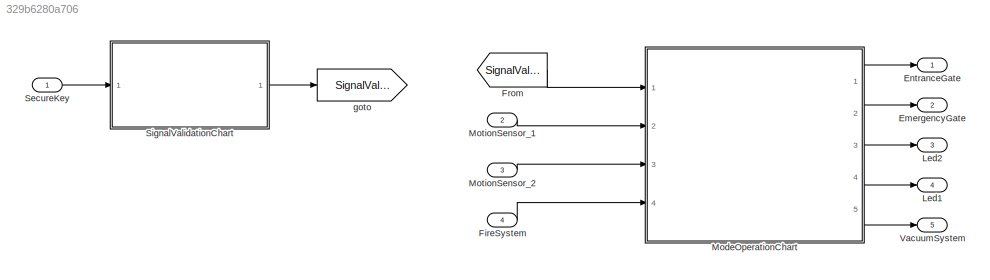
MODEL slx_329b6280a706
KIND model
CONFIG AbsTol = auto
CONFIG FixedStep = auto
CONFIG MaxStep = auto
CONFIG MinStep = auto
CONFIG RelTol = 1e-3
CONFIG SampleTimeConstraint = Unconstrained
CONFIG Solver = VariableStepAuto
CONFIG SolverMode = Auto
CONFIG SolverName = VariableStepAuto
CONFIG StartTime = 0.0
CONFIG StopTime = 10.0
BLOCK [Outport] EmergencyGate
  IconDisplay = Port number
  Port = 2
BLOCK [Outport] EntranceGate
  IconDisplay = Port number
BLOCK [Inport] FireSystem
  IconDisplay = Port number
  Port = 4
BLOCK [From] From
  GotoTag = SignalValidity
BLOCK [Outport] Led1
  IconDisplay = Port number
  Port = 4
BLOCK [Outport] Led2
  IconDisplay = Port number
  Port = 3
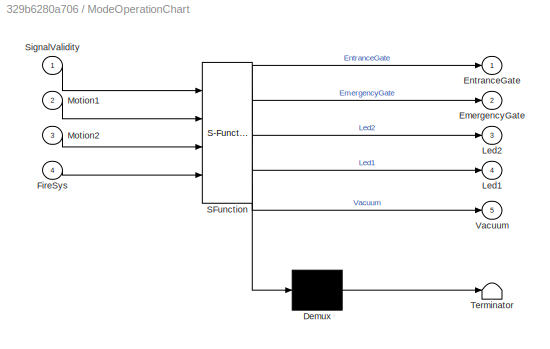
BLOCK [SubSystem] ModeOperationChart
  ErrorFcn = Stateflow.Translate.translate
  PermitHierarchicalResolution = ExplicitOnly
  Ports = [4, 5]
  RequestExecContextInheritance = off
  SFBlockType = Chart
  TreatAsAtomicUnit = on
  Variant = off
BLOCK [Demux] ModeOperationChart/ Demux 
  Outputs = 1
  Ports = [1, 1]
BLOCK [S-Function] ModeOperationChart/ SFunction 
  EnableBusSupport = on
  FunctionName = sf_sfun
  PortCounts = [4 6]
  Ports = [4, 6]
  SFunctionDeploymentMode = off
  Tag = Stateflow S-Function SecureRoom 1
BLOCK [Terminator] ModeOperationChart/ Terminator 
BLOCK [Outport] ModeOperationChart/EmergencyGate
  IconDisplay = Port number
  Port = 2
BLOCK [Outport] ModeOperationChart/EntranceGate
  IconDisplay = Port number
BLOCK [Inport] ModeOperationChart/FireSys
  IconDisplay = Port number
  Port = 4
BLOCK [Outport] ModeOperationChart/Led1
  IconDisplay = Port number
  Port = 4
BLOCK [Outport] ModeOperationChart/Led2
  IconDisplay = Port number
  Port = 3
BLOCK [Inport] ModeOperationChart/Motion1
  IconDisplay = Port number
  Port = 2
BLOCK [Inport] ModeOperationChart/Motion2
  IconDisplay = Port number
  Port = 3
BLOCK [Inport] ModeOperationChart/SignalValidity
  IconDisplay = Port number
BLOCK [Outport] ModeOperationChart/Vacuum
  IconDisplay = Port number
  Port = 5
BLOCK [Inport] MotionSensor_1
  IconDisplay = Port number
  Port = 2
BLOCK [Inport] MotionSensor_2
  IconDisplay = Port number
  Port = 3
BLOCK [Inport] SecureKey
  IconDisplay = Port number
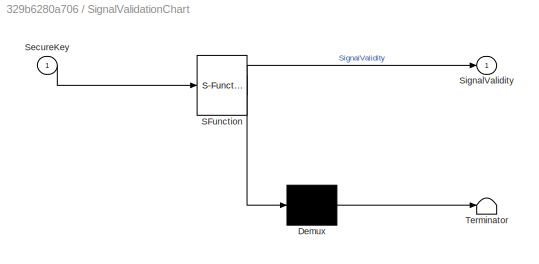
BLOCK [SubSystem] SignalValidationChart
  ErrorFcn = Stateflow.Translate.translate
  PermitHierarchicalResolution = ExplicitOnly
  Ports = [1, 1]
  RequestExecContextInheritance = off
  SFBlockType = Chart
  TreatAsAtomicUnit = on
  Variant = off
BLOCK [Demux] SignalValidationChart/ Demux 
  Outputs = 1
  Ports = [1, 1]
BLOCK [S-Function] SignalValidationChart/ SFunction 
  EnableBusSupport = on
  FunctionName = sf_sfun
  PortCounts = [1 2]
  Ports = [1, 2]
  SFunctionDeploymentMode = off
  Tag = Stateflow S-Function SecureRoom 3
BLOCK [Terminator] SignalValidationChart/ Terminator 
BLOCK [Inport] SignalValidationChart/SecureKey
  IconDisplay = Port number
BLOCK [Outport] SignalValidationChart/SignalValidity
  IconDisplay = Port number
BLOCK [Outport] VacuumSystem
  IconDisplay = Port number
  Port = 5
BLOCK [Goto] goto
  GotoTag = SignalValidity
LINE FireSystem:1 -> ModeOperationChart:4
LINE From:1 -> ModeOperationChart:1
LINE ModeOperationChart:1 -> EntranceGate:1
LINE ModeOperationChart:2 -> EmergencyGate:1
LINE ModeOperationChart:3 -> Led2:1
LINE ModeOperationChart:4 -> Led1:1
LINE ModeOperationChart:5 -> VacuumSystem:1
LINE MotionSensor_1:1 -> ModeOperationChart:2
LINE MotionSensor_2:1 -> ModeOperationChart:3
LINE SecureKey:1 -> SignalValidationChart:1
LINE SignalValidationChart:1 -> goto:1
CHART ModeOperationChart states=7 transitions=15
  STATE_LABEL 'Invalid\nen:\nEntranceGate=0;\nEmergencyGate=0;\nLed1=0;\nLed2=0;\nVacuum=0;\ndu:\nex:'
  STATE_LABEL 'Valid'
  STATE_LABEL 'Room2\nen:\nLed1=0;\nLed2=1;\nVacuum=0;\nEntranceGate=1;\nEmergencyGate=1;\ndu:\nex:'
  STATE_LABEL 'Room1\nen:\nLed1=1;\nLed2=0;\nVacuum=0;\nEntranceGate=1;\nEmergencyGate=1;\ndu:\nex:'
  STATE_LABEL 'Emergency\nen:\nLed1=1;\nLed2=1;\nVacuum=1;\ndu:\nEmergencyCounter++;\nex:'
  STATE_LABEL 'SystemLocked\nen:\nEntranceGate=0;\nEmergencyGate=0;\ndu:\nex:'
  STATE_LABEL '[Motion1==0 && Motion2==1]'
  STATE_LABEL '[Motion1==1 && Motion2==0]'
  STATE_LABEL '[FireSys==1]\n'
  STATE_LABEL '[FireSys==1]\n'
  STATE_LABEL '[EmergencyCounter==5]'
  STATE_LABEL 'Room2\nen:\nLed1=0;\nLed2=1;\nVacuum=0;\nEntranceGate=1;\nEmergencyGate=1;\ndu:\nex:'
  STATE_LABEL 'Room1\nen:\nLed1=1;\nLed2=0;\nVacuum=0;\nEntranceGate=1;\nEmergencyGate=1;\ndu:\nex:'
  STATE_LABEL 'Emergency\nen:\nLed1=1;\nLed2=1;\nVacuum=1;\ndu:\nEmergencyCounter++;\nex:'
  STATE_LABEL 'SystemLocked\nen:\nEntranceGate=0;\nEmergencyGate=0;\ndu:\nex:'
  STATE_LABEL 'Do_Nothing'
CHART SignalValidationChart states=1 transitions=23
  STATE_LABEL 'The added condition of "InvalidCounter<3"\nto prevent counter increment if it reach value = 3'
